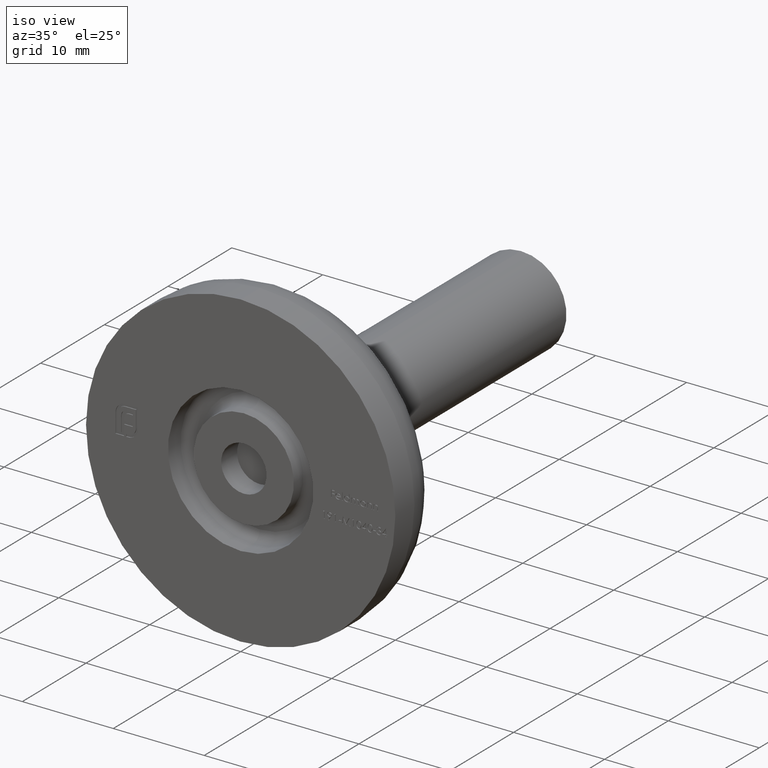
[diagram: clean part render]
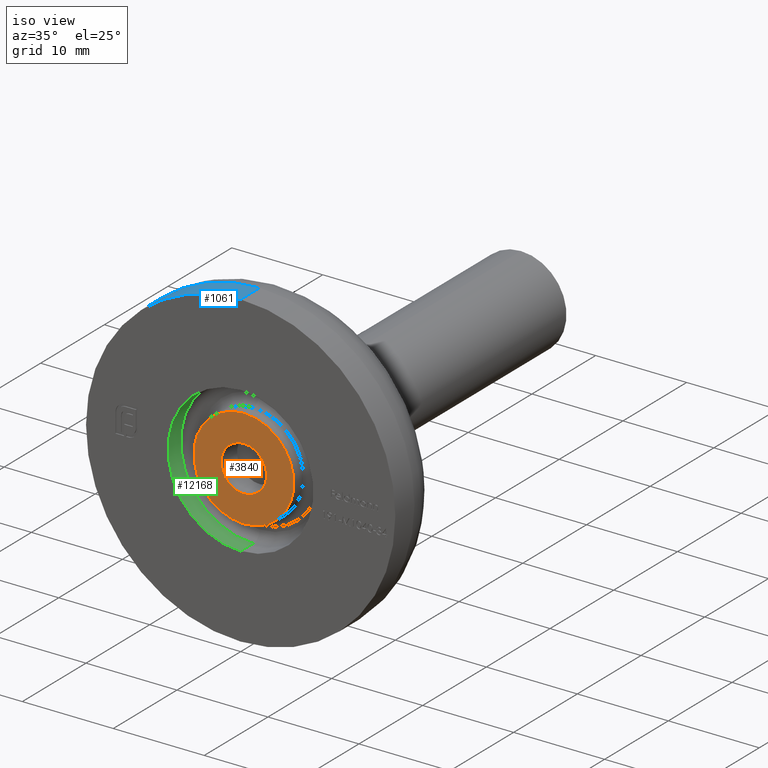
[diagram: same view with three faces highlighted in distinct colors, each labeled with its STEP entity id]
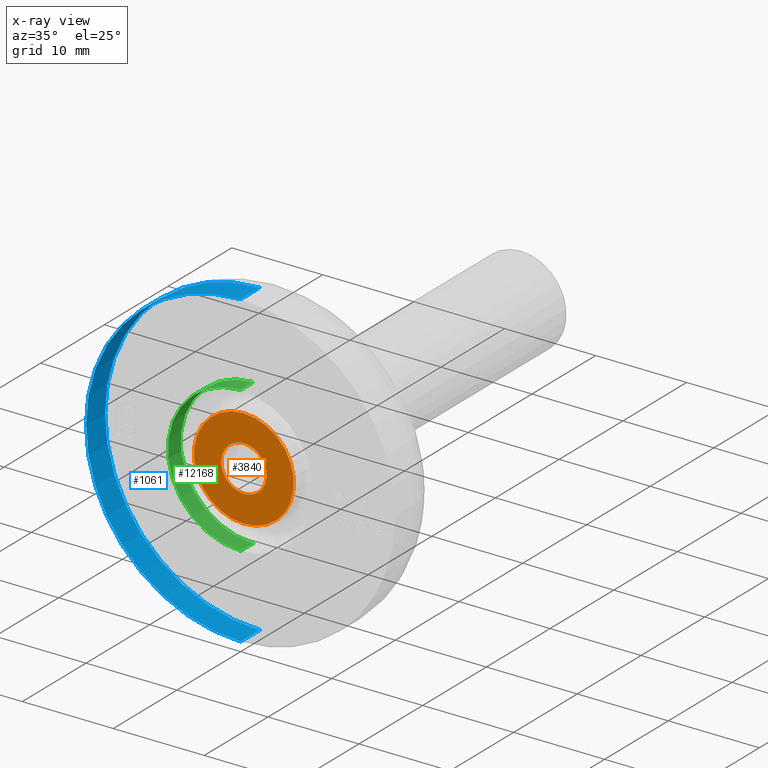
[diagram: x-ray of the same camera — body ghosted, the three highlighted faces saturated]
A machine part, iso view with three faces highlighted in distinct colors.
The next image is the same camera in x-ray (body ghosted, the three faces saturated) — at least one of them is partly hidden behind the body in this view.
Their STEP definitions:

[orange] entity #3840 — the highlighted planar face has unit normal (0, -1, -0).
#40 = EDGE_CURVE ( 'NONE', #14726, #5783, #11259, .T. ) ;
#120 = CARTESIAN_POINT ( 'NONE',  ( 3.061616997868383141E-16, 0.5000000000000004441, -2.500000000000000000 ) ) ;
#379 = CIRCLE ( 'NONE', #12281, 2.500000000000000000 ) ;
#748 = FACE_OUTER_BOUND ( 'NONE', #9469, .T. ) ;
#859 = DIRECTION ( 'NONE',  ( 0.000000000000000000, 0.000000000000000000, -1.000000000000000000 ) ) ;
#972 = AXIS2_PLACEMENT_3D ( 'NONE', #11152, #6611, #859 ) ;
#1335 = DIRECTION ( 'NONE',  ( -0.000000000000000000, -1.000000000000000000, -0.000000000000000000 ) ) ;
#1743 = ORIENTED_EDGE ( 'NONE', *, *, #14837, .T. ) ;
#2457 = CARTESIAN_POINT ( 'NONE',  ( 0.000000000000000000, 0.5000000000000004441, 5.500000000000000000 ) ) ;
#3196 = VERTEX_POINT ( 'NONE', #2457 ) ;
#3840 = ADVANCED_FACE ( 'NONE', ( #8681, #748 ), #12216, .T. ) ;
#3981 = CARTESIAN_POINT ( 'NONE',  ( 0.000000000000000000, 0.5000000000000004441, 0.000000000000000000 ) ) ;
#4846 = AXIS2_PLACEMENT_3D ( 'NONE', #6910, #1335, #8268 ) ;
#5783 = VERTEX_POINT ( 'NONE', #120 ) ;
#5911 = ORIENTED_EDGE ( 'NONE', *, *, #11113, .T. ) ;
#6580 = CARTESIAN_POINT ( 'NONE',  ( 6.735557395310442023E-16, 0.5000000000000004441, -5.500000000000000000 ) ) ;
#6611 = DIRECTION ( 'NONE',  ( 0.000000000000000000, -1.000000000000000000, -0.000000000000000000 ) ) ;
#6910 = CARTESIAN_POINT ( 'NONE',  ( 0.000000000000000000, 0.5000000000000004441, 0.000000000000000000 ) ) ;
#7388 = CARTESIAN_POINT ( 'NONE',  ( 0.000000000000000000, 0.5000000000000004441, 0.000000000000000000 ) ) ;
#8268 = DIRECTION ( 'NONE',  ( 0.000000000000000000, 0.000000000000000000, -1.000000000000000000 ) ) ;
#8681 = FACE_BOUND ( 'NONE', #10557, .T. ) ;
#8840 = VERTEX_POINT ( 'NONE', #6580 ) ;
#9132 = EDGE_CURVE ( 'NONE', #5783, #14726, #379, .T. ) ;
#9170 = AXIS2_PLACEMENT_3D ( 'NONE', #7388, #9702, #10892 ) ;
#9469 = EDGE_LOOP ( 'NONE', ( #1743, #5911 ) ) ;
#9596 = CARTESIAN_POINT ( 'NONE',  ( 0.000000000000000000, 0.5000000000000004441, 2.500000000000000000 ) ) ;
#9702 = DIRECTION ( 'NONE',  ( -0.000000000000000000, -1.000000000000000000, -0.000000000000000000 ) ) ;
#9733 = DIRECTION ( 'NONE',  ( 0.000000000000000000, 0.000000000000000000, -1.000000000000000000 ) ) ;
#10134 = ORIENTED_EDGE ( 'NONE', *, *, #9132, .F. ) ;
#10145 = ORIENTED_EDGE ( 'NONE', *, *, #40, .F. ) ;
#10557 = EDGE_LOOP ( 'NONE', ( #10145, #10134 ) ) ;
#10811 = DIRECTION ( 'NONE',  ( -0.000000000000000000, -1.000000000000000000, -0.000000000000000000 ) ) ;
#10892 = DIRECTION ( 'NONE',  ( 0.000000000000000000, 0.000000000000000000, -1.000000000000000000 ) ) ;
#11072 = DIRECTION ( 'NONE',  ( -0.000000000000000000, -1.000000000000000000, -0.000000000000000000 ) ) ;
#11113 = EDGE_CURVE ( 'NONE', #8840, #3196, #12640, .T. ) ;
#11152 = CARTESIAN_POINT ( 'NONE',  ( 17.00000000000000000, 0.5000000000000000000, 0.000000000000000000 ) ) ;
#11259 = CIRCLE ( 'NONE', #4846, 2.500000000000000000 ) ;
#11872 = CARTESIAN_POINT ( 'NONE',  ( 0.000000000000000000, 0.5000000000000004441, 0.000000000000000000 ) ) ;
#11979 = DIRECTION ( 'NONE',  ( 0.000000000000000000, 0.000000000000000000, -1.000000000000000000 ) ) ;
#12216 = PLANE ( 'NONE',  #972 ) ;
#12281 = AXIS2_PLACEMENT_3D ( 'NONE', #11872, #10811, #11979 ) ;
#12640 = CIRCLE ( 'NONE', #9170, 5.500000000000000000 ) ;
#12835 = CIRCLE ( 'NONE', #14389, 5.500000000000000000 ) ;
#14389 = AXIS2_PLACEMENT_3D ( 'NONE', #3981, #11072, #9733 ) ;
#14726 = VERTEX_POINT ( 'NONE', #9596 ) ;
#14837 = EDGE_CURVE ( 'NONE', #3196, #8840, #12835, .T. ) ;

[blue] entity #1061 — the highlighted cylindrical surface (partial cylindrical patch) has radius 17 mm, axis along (-0, -1, -0).
#226 = CYLINDRICAL_SURFACE ( 'NONE', #4570, 17.00000000000000000 ) ;
#385 = ORIENTED_EDGE ( 'NONE', *, *, #7567, .F. ) ;
#977 = EDGE_CURVE ( 'NONE', #10839, #13741, #8683, .T. ) ;
#1061 = ADVANCED_FACE ( 'NONE', ( #12144 ), #226, .T. ) ;
#1959 = CARTESIAN_POINT ( 'NONE',  ( 0.000000000000000000, 0.000000000000000000, -17.00000000000000000 ) ) ;
#2174 = VECTOR ( 'NONE', #13413, 1000.000000000000000 ) ;
#2227 = DIRECTION ( 'NONE',  ( -0.000000000000000000, -1.000000000000000000, -0.000000000000000000 ) ) ;
#2708 = LINE ( 'NONE', #4173, #2174 ) ;
#3832 = ORIENTED_EDGE ( 'NONE', *, *, #977, .T. ) ;
#4173 = CARTESIAN_POINT ( 'NONE',  ( 2.081899558550500280E-15, 0.000000000000000000, 17.00000000000000000 ) ) ;
#4520 = DIRECTION ( 'NONE',  ( 0.000000000000000000, 0.000000000000000000, 1.000000000000000000 ) ) ;
#4570 = AXIS2_PLACEMENT_3D ( 'NONE', #9268, #13886, #10552 ) ;
#5394 = EDGE_CURVE ( 'NONE', #10839, #5900, #2708, .T. ) ;
#5900 = VERTEX_POINT ( 'NONE', #12033 ) ;
#5967 = ORIENTED_EDGE ( 'NONE', *, *, #5394, .F. ) ;
#6219 = ORIENTED_EDGE ( 'NONE', *, *, #7588, .T. ) ;
#6474 = VECTOR ( 'NONE', #9974, 1000.000000000000000 ) ;
#6669 = DIRECTION ( 'NONE',  ( 0.000000000000000000, 0.000000000000000000, -1.000000000000000000 ) ) ;
#7196 = CARTESIAN_POINT ( 'NONE',  ( 0.000000000000000000, 1.836970198721010336E-17, -17.00000000000000000 ) ) ;
#7567 = EDGE_CURVE ( 'NONE', #5900, #12254, #10803, .T. ) ;
#7588 = EDGE_CURVE ( 'NONE', #13741, #12254, #12068, .T. ) ;
#8152 = CARTESIAN_POINT ( 'NONE',  ( 2.081899558550500280E-15, 2.999999999999998224, 17.00000000000000000 ) ) ;
#8670 = CARTESIAN_POINT ( 'NONE',  ( 0.000000000000000000, 2.999999999999998224, -17.00000000000000000 ) ) ;
#8683 = CIRCLE ( 'NONE', #13550, 17.00000000000000000 ) ;
#8758 = AXIS2_PLACEMENT_3D ( 'NONE', #10024, #11213, #6669 ) ;
#9268 = CARTESIAN_POINT ( 'NONE',  ( 0.000000000000000000, 0.000000000000000000, 0.000000000000000000 ) ) ;
#9974 = DIRECTION ( 'NONE',  ( -0.000000000000000000, -1.000000000000000000, -0.000000000000000000 ) ) ;
#10024 = CARTESIAN_POINT ( 'NONE',  ( 0.000000000000000000, 1.836970198721010336E-17, 0.000000000000000000 ) ) ;
#10291 = CARTESIAN_POINT ( 'NONE',  ( 0.000000000000000000, 2.999999999999998224, 0.000000000000000000 ) ) ;
#10552 = DIRECTION ( 'NONE',  ( 0.000000000000000000, 0.000000000000000000, -1.000000000000000000 ) ) ;
#10736 = EDGE_LOOP ( 'NONE', ( #5967, #3832, #6219, #385 ) ) ;
#10803 = CIRCLE ( 'NONE', #8758, 17.00000000000000000 ) ;
#10839 = VERTEX_POINT ( 'NONE', #8152 ) ;
#11213 = DIRECTION ( 'NONE',  ( -0.000000000000000000, -1.000000000000000000, -0.000000000000000000 ) ) ;
#12033 = CARTESIAN_POINT ( 'NONE',  ( 2.081899558550500280E-15, 1.836970198721010336E-17, 17.00000000000000000 ) ) ;
#12068 = LINE ( 'NONE', #1959, #6474 ) ;
#12144 = FACE_OUTER_BOUND ( 'NONE', #10736, .T. ) ;
#12254 = VERTEX_POINT ( 'NONE', #7196 ) ;
#13413 = DIRECTION ( 'NONE',  ( -0.000000000000000000, -1.000000000000000000, -0.000000000000000000 ) ) ;
#13550 = AXIS2_PLACEMENT_3D ( 'NONE', #10291, #2227, #4520 ) ;
#13741 = VERTEX_POINT ( 'NONE', #8670 ) ;
#13886 = DIRECTION ( 'NONE',  ( -0.000000000000000000, -1.000000000000000000, -0.000000000000000000 ) ) ;

[green] entity #12168 — the highlighted cylindrical surface (partial cylindrical patch) has radius 8 mm, axis along (-0, -1, -0).
#328 = VERTEX_POINT ( 'NONE', #12370 ) ;
#802 = CARTESIAN_POINT ( 'NONE',  ( 9.797174393178827630E-16, 3.000000000000000000, 8.000000000000001776 ) ) ;
#1166 = ORIENTED_EDGE ( 'NONE', *, *, #2552, .T. ) ;
#1583 = DIRECTION ( 'NONE',  ( -0.000000000000000000, 1.000000000000000000, -0.000000000000000000 ) ) ;
#2307 = DIRECTION ( 'NONE',  ( -0.000000000000000000, -1.000000000000000000, -0.000000000000000000 ) ) ;
#2512 = AXIS2_PLACEMENT_3D ( 'NONE', #10185, #14826, #14781 ) ;
#2552 = EDGE_CURVE ( 'NONE', #8599, #328, #14271, .T. ) ;
#2580 = CARTESIAN_POINT ( 'NONE',  ( 0.000000000000000000, 3.000000000000000000, -8.000000000000001776 ) ) ;
#3407 = CIRCLE ( 'NONE', #11318, 8.000000000000001776 ) ;
#3445 = DIRECTION ( 'NONE',  ( 0.000000000000000000, 0.000000000000000000, -1.000000000000000000 ) ) ;
#3848 = DIRECTION ( 'NONE',  ( -0.000000000000000000, -1.000000000000000000, -0.000000000000000000 ) ) ;
#4060 = EDGE_CURVE ( 'NONE', #7664, #8855, #6000, .T. ) ;
#4315 = DIRECTION ( 'NONE',  ( -0.000000000000000000, -1.000000000000000000, -0.000000000000000000 ) ) ;
#4471 = CYLINDRICAL_SURFACE ( 'NONE', #12303, 8.000000000000001776 ) ;
#4647 = CIRCLE ( 'NONE', #2512, 8.000000000000001776 ) ;
#4845 = CARTESIAN_POINT ( 'NONE',  ( 0.000000000000000000, 2.000000000000000000, 0.000000000000000000 ) ) ;
#4892 = VECTOR ( 'NONE', #3848, 1000.000000000000000 ) ;
#4917 = CARTESIAN_POINT ( 'NONE',  ( 0.000000000000000000, 2.000000000000000000, -8.000000000000001776 ) ) ;
#4923 = ORIENTED_EDGE ( 'NONE', *, *, #6772, .T. ) ;
#5447 = EDGE_LOOP ( 'NONE', ( #7523, #1166, #4923, #11127 ) ) ;
#5838 = EDGE_CURVE ( 'NONE', #7664, #8599, #3407, .T. ) ;
#6000 = LINE ( 'NONE', #2580, #4892 ) ;
#6204 = VECTOR ( 'NONE', #4315, 1000.000000000000000 ) ;
#6772 = EDGE_CURVE ( 'NONE', #328, #8855, #4647, .T. ) ;
#7523 = ORIENTED_EDGE ( 'NONE', *, *, #5838, .T. ) ;
#7664 = VERTEX_POINT ( 'NONE', #4917 ) ;
#7789 = CARTESIAN_POINT ( 'NONE',  ( 9.797174393178827630E-16, 2.000000000000000000, 8.000000000000001776 ) ) ;
#8599 = VERTEX_POINT ( 'NONE', #7789 ) ;
#8855 = VERTEX_POINT ( 'NONE', #13611 ) ;
#10185 = CARTESIAN_POINT ( 'NONE',  ( 0.000000000000000000, 0.000000000000000000, 0.000000000000000000 ) ) ;
#11127 = ORIENTED_EDGE ( 'NONE', *, *, #4060, .F. ) ;
#11318 = AXIS2_PLACEMENT_3D ( 'NONE', #4845, #1583, #14049 ) ;
#11727 = FACE_OUTER_BOUND ( 'NONE', #5447, .T. ) ;
#12168 = ADVANCED_FACE ( 'NONE', ( #11727 ), #4471, .F. ) ;
#12303 = AXIS2_PLACEMENT_3D ( 'NONE', #12656, #2307, #3445 ) ;
#12370 = CARTESIAN_POINT ( 'NONE',  ( 9.797174393178827630E-16, 0.000000000000000000, 8.000000000000001776 ) ) ;
#12656 = CARTESIAN_POINT ( 'NONE',  ( 0.000000000000000000, 3.000000000000000000, 0.000000000000000000 ) ) ;
#13611 = CARTESIAN_POINT ( 'NONE',  ( 0.000000000000000000, 0.000000000000000000, -8.000000000000001776 ) ) ;
#14049 = DIRECTION ( 'NONE',  ( 0.000000000000000000, 0.000000000000000000, -1.000000000000000000 ) ) ;
#14271 = LINE ( 'NONE', #802, #6204 ) ;
#14781 = DIRECTION ( 'NONE',  ( 0.000000000000000000, 0.000000000000000000, -1.000000000000000000 ) ) ;
#14826 = DIRECTION ( 'NONE',  ( 0.000000000000000000, -1.000000000000000000, 0.000000000000000000 ) ) ;